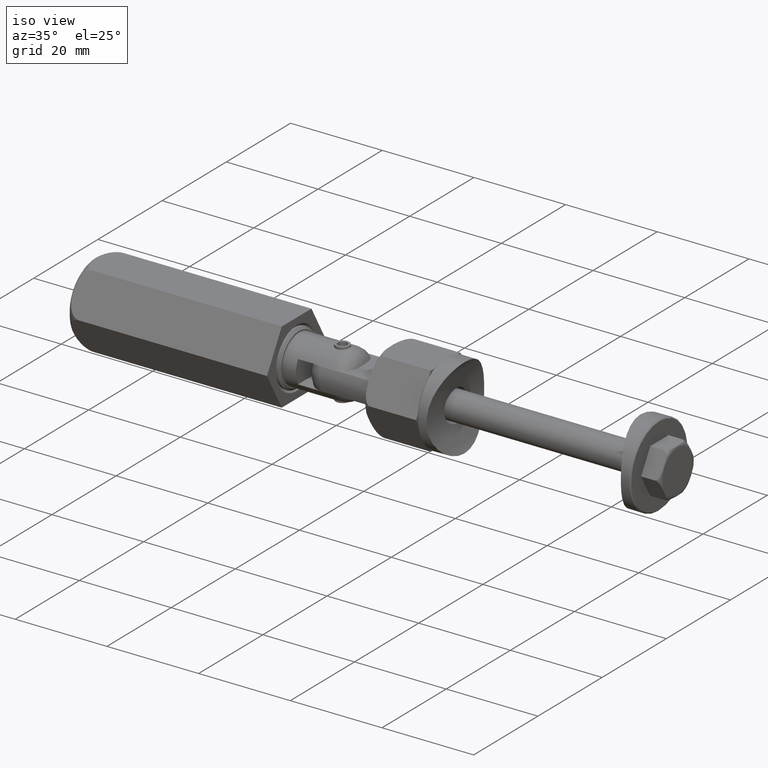
[diagram: clean part render]
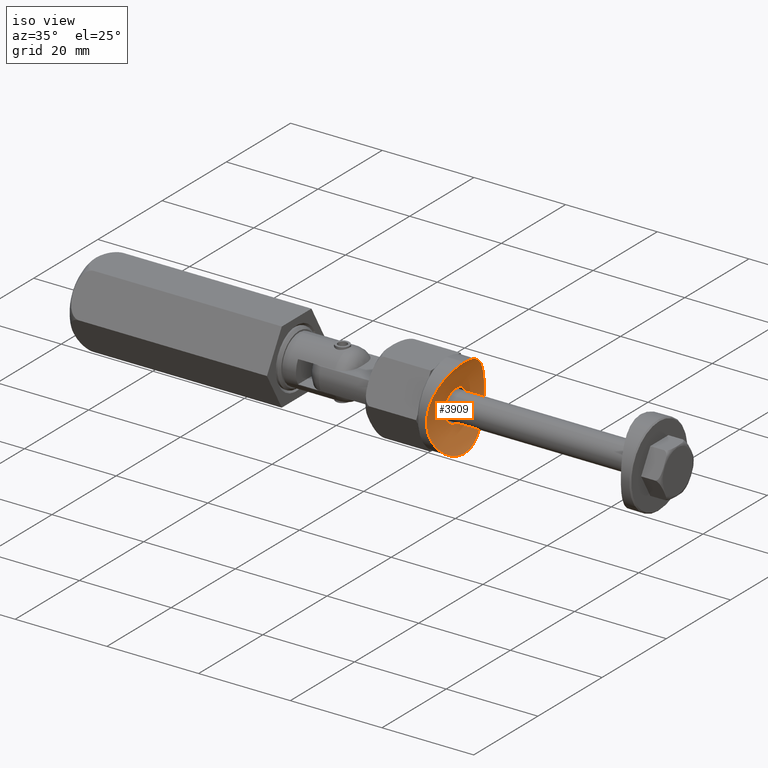
[diagram: same view with one face highlighted and labeled with its STEP entity id]
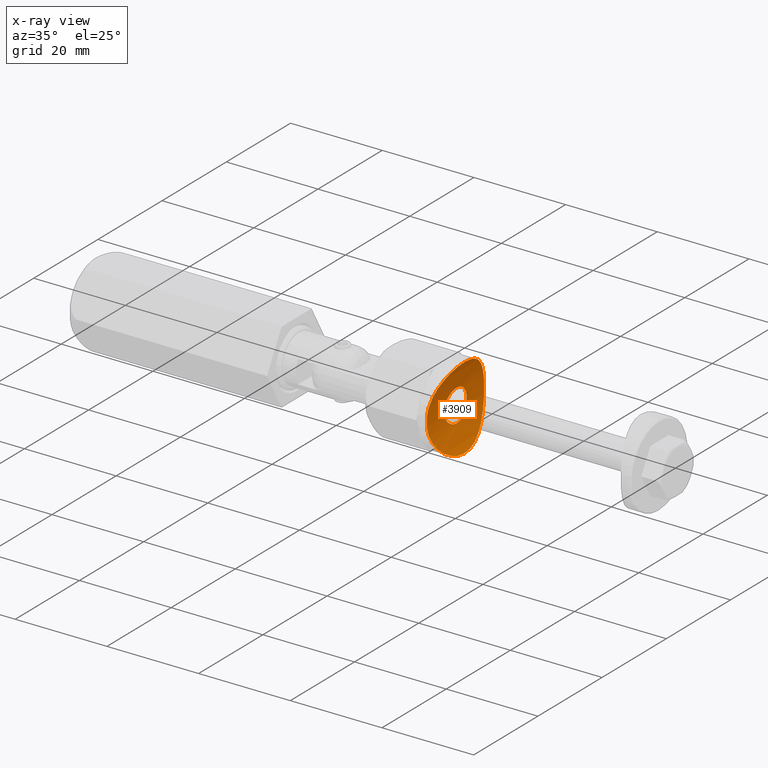
[diagram: x-ray of the same camera — body ghosted, the highlighted face saturated]
A machine part, iso view. The second image highlights one B-rep face of the part: STEP entity #3909.
The next image is the same camera in x-ray: the body ghosted, the highlighted face saturated — about 0% of this face is hidden behind the body in this view.
In plain terms, the highlighted cylindrical surface (partial cylindrical patch) has radius 21.2 mm, axis along (0, 1, 0).
Its self-contained STEP definition (entity closure, byte-faithful):
#37 = CARTESIAN_POINT ( 'NONE',  ( -4.529556461873096573, 7.799281068273506534, 2.583449115028530585 ) ) ;
#212 = CARTESIAN_POINT ( 'NONE',  ( -8.984718648477102221, -0.6034601397220153984, 4.098023013587533292 ) ) ;
#918 = CARTESIAN_POINT ( 'NONE',  ( -8.077715715060879376, 4.012037878863901064, 3.697672808785787968 ) ) ;
#977 = CARTESIAN_POINT ( 'NONE',  ( -8.693075955343484651, 2.349217114833197506, 3.964036308711037293 ) ) ;
#1076 = CARTESIAN_POINT ( 'NONE',  ( -9.000000000000000000, 0.6022301676324366415, 4.105209039950446837 ) ) ;
#1080 = CARTESIAN_POINT ( 'NONE',  ( -3.320600948318714440, 1.129692993203106122, 2.361482373378766653 ) ) ;
#1142 = CARTESIAN_POINT ( 'NONE',  ( 3.476902944007814078, 0.4622046229343148571, 2.387008304216344357 ) ) ;
#1204 = CARTESIAN_POINT ( 'NONE',  ( -0.5856921983027995049, -9.000526453280953021, 2.099776505755873046 ) ) ;
#1208 = CARTESIAN_POINT ( 'NONE',  ( 3.037866316434117309, -1.753302620773837361, 2.318390375629150402 ) ) ;
#1258 = CARTESIAN_POINT ( 'NONE',  ( 1.183904790595069478, 8.926821845496240471, 2.130979375828014444 ) ) ;
#1262 = CARTESIAN_POINT ( 'NONE',  ( -1.127079799142055583, -3.321472759838139943, 2.128918759278375372 ) ) ;
#1317 = CARTESIAN_POINT ( 'NONE',  ( 6.773075127230494097, -5.933833905163506728, 3.210108331659413228 ) ) ;
#1322 = CARTESIAN_POINT ( 'NONE',  ( -1.751451033441404181, -3.038880866574763751, 2.171607237727812834 ) ) ;
#1380 = CARTESIAN_POINT ( 'NONE',  ( -6.161404844027698502, 6.566661741195224167, 3.013965487062178816 ) ) ;
#1435 = CARTESIAN_POINT ( 'NONE',  ( -2.069273427123894837, 8.763926665609220734, 2.199204624531772900 ) ) ;
#1439 = CARTESIAN_POINT ( 'NONE',  ( -3.386783194588574464, -0.9126048154589467831, 2.372224207840019528 ) ) ;
#1560 = CARTESIAN_POINT ( 'NONE',  ( -8.533054436092360362, -2.922138815264546441, 3.891528669452685829 ) ) ;
#1562 = CARTESIAN_POINT ( 'NONE',  ( -3.500000000000000000, -8.131516293641283255E-17, 2.390911067193771000 ) ) ;
#1803 = ORIENTED_EDGE ( 'NONE', *, *, #16024, .F. ) ;
#2197 = DIRECTION ( 'NONE',  ( 0.000000000000000000, 0.000000000000000000, 1.000000000000000000 ) ) ;
#2493 = CARTESIAN_POINT ( 'NONE',  ( 0.2340966869037648945, -3.499812348612850066, 2.100030980172074901 ) ) ;
#2535 = B_SPLINE_CURVE_WITH_KNOTS ( 'NONE', 3,
 ( #7775, #1076, #17632, #13749, #977, #7994, #5360, #918, #13584, #10698, #12102, #3718, #13530, #1380, #15309, #2665, #5536, #37, #2783, #6824, #12621, #12434, #1435, #8272, #7001, #17975, #15243, #1258, #9804, #11056, #15130, #6939, #14047, #13810, #18037, #16569, #6757, #4066, #4185, #5475, #9685, #8341, #4119, #11239, #2728, #18094, #13875, #2843, #9745, #2599, #13987, #8217, #4250, #16751, #12566, #16693, #6884, #1317, #16519, #8159, #11176, #5592, #15373, #12502, #17914, #9554, #9621, #13930, #8399, #10997, #16633, #1204, #12381, #11115, #4006, #5412, #15192, #5650, #4554, #4373, #12758, #7188, #8590, #4442, #12823, #1560, #3031, #14228, #5714, #212, #5835, #9992 ),
 .UNSPECIFIED., .T., .F.,
 ( 4, 2, 2, 2, 2, 2, 2, 2, 2, 2, 2, 2, 2, 2, 2, 2, 2, 2, 2, 2, 2, 2, 2, 2, 2, 2, 2, 2, 2, 2, 2, 2, 2, 2, 2, 2, 2, 2, 2, 2, 2, 2, 2, 2, 2, 4 ),
 ( 0.000000000000000000, 0.001779121269481610899, 0.002668681904222417432, 0.003558242538963223098, 0.005337363808444837467, 0.006226924443185643566, 0.007116485077926449666, 0.008006045712667254899, 0.008895606347408060999, 0.01067472761688967146, 0.01156428825163047756, 0.01245384888637128193, 0.01423297015585289066, 0.01512253079059369502, 0.01601209142533449939, 0.01779121269481610812, 0.01957033396429771338, 0.02134945523377932211, 0.02312857650326093431, 0.02401813713800173694, 0.02490769777274254304, 0.02668681904222415177, 0.02846594031170575703, 0.02935550094644655966, 0.03024506158118736576, 0.03202418285066897796, 0.03291374348540978406, 0.03380330412015058322, 0.03469286475489138932, 0.03558242538963219542, 0.03736154665911380762, 0.03825110729385461372, 0.03914066792859541982, 0.04091978919807702508, 0.04180934983281783118, 0.04269891046755863728, 0.04447803173704026336, 0.04625715300652187556, 0.04803627427600348082, 0.04981539554548509302, 0.05070495618022589912, 0.05159451681496670522, 0.05337363808444831048, 0.05515275935392992268, 0.05604231998867072878, 0.05693188062341153488 ),
 .UNSPECIFIED. ) ;
#2550 = CARTESIAN_POINT ( 'NONE',  ( -2.313446218120369213, 2.636264786901057811, 2.225980594803974366 ) ) ;
#2599 = CARTESIAN_POINT ( 'NONE',  ( 8.708359458168319023, -2.349133148422251516, 3.970722831128999264 ) ) ;
#2603 = CARTESIAN_POINT ( 'NONE',  ( 3.146732856218461105, -1.549214439599097881, 2.334651019177073294 ) ) ;
#2665 = CARTESIAN_POINT ( 'NONE',  ( -5.497450429022882723, 7.131813691955863455, 2.823855749445251195 ) ) ;
#2670 = CARTESIAN_POINT ( 'NONE',  ( -1.550448968162864372, -3.146203770435664904, 2.155707678619462442 ) ) ;
#2728 = CARTESIAN_POINT ( 'NONE',  ( 8.999172276844687346, 0.6052519994996065078, 4.104820939877700248 ) ) ;
#2731 = CARTESIAN_POINT ( 'NONE',  ( 3.499910295345006972, 0.2299777461154664804, 2.390896051414324930 ) ) ;
#2783 = CARTESIAN_POINT ( 'NONE',  ( -4.015580886328727672, 8.075779872960261230, 2.476572724249879176 ) ) ;
#2843 = CARTESIAN_POINT ( 'NONE',  ( 8.927896380613054461, -1.175557709462171863, 4.071539299863849770 ) ) ;
#2849 = CARTESIAN_POINT ( 'NONE',  ( -3.319065593604421327, -1.133907466767667627, 2.361240511285288779 ) ) ;
#3031 = CARTESIAN_POINT ( 'NONE',  ( -8.705287611884930499, -2.359308650723932921, 3.969338804076948612 ) ) ;
#3718 = CARTESIAN_POINT ( 'NONE',  ( -6.766048313375105039, 5.941849588956706896, 3.207737569877102679 ) ) ;
#3890 = CARTESIAN_POINT ( 'NONE',  ( 3.388192740053830754, -0.9074120602962160165, 2.372453070477746895 ) ) ;
#3909 = ADVANCED_FACE ( 'NONE', ( #17736, #9656 ), #15576, .F. ) ;
#4006 = CARTESIAN_POINT ( 'NONE',  ( -2.919603497746500409, -8.533584350906092908, 2.294788581318373932 ) ) ;
#4009 = CARTESIAN_POINT ( 'NONE',  ( -3.500000000000000000, -8.131516293641283255E-17, 2.390911067193771000 ) ) ;
#4066 = CARTESIAN_POINT ( 'NONE',  ( 7.633095921920673987, 4.777164185214711090, 3.521066813696617892 ) ) ;
#4069 = CARTESIAN_POINT ( 'NONE',  ( -0.9100132660212730817, 3.387472811121648775, 2.118333464570299363 ) ) ;
#4119 = CARTESIAN_POINT ( 'NONE',  ( 8.702408039283348273, 2.372073640349042556, 3.968027577799811301 ) ) ;
#4122 = CARTESIAN_POINT ( 'NONE',  ( 2.311144342984660760, 2.638508228965967817, 2.225713509168732784 ) ) ;
#4185 = CARTESIAN_POINT ( 'NONE',  ( 7.786055058421186281, 4.523650702319240935, 3.580978259992664281 ) ) ;
#4250 = CARTESIAN_POINT ( 'NONE',  ( 8.068293523425873914, -3.998611255628535588, 3.694769083929056563 ) ) ;
#4373 = CARTESIAN_POINT ( 'NONE',  ( -6.570051494431054628, -6.157908511444627031, 3.142585294229900850 ) ) ;
#4442 = CARTESIAN_POINT ( 'NONE',  ( -7.796916004019784019, -4.532705707074540236, 3.582807033181333534 ) ) ;
#4554 = CARTESIAN_POINT ( 'NONE',  ( -5.950024793402118206, -6.777821217551546873, 2.947482170566961379 ) ) ;
#4962 = EDGE_CURVE ( 'NONE', #10366, #10366, #5154, .T. ) ;
#5154 = B_SPLINE_CURVE_WITH_KNOTS ( 'NONE', 3,
 ( #4009, #11000, #13815, #6942, #1080, #12505, #10932, #16522, #13752, #2550, #17855, #15313, #5540, #5363, #4069, #16636, #9505, #15247, #10878, #13878, #12437, #8276, #11119, #11060, #4122, #12272, #17919, #5415, #15195, #6708, #6827, #1142, #2731, #6887, #9557, #3890, #16696, #2603, #1208, #16572, #13933, #8220, #5479, #12325, #9687, #18041, #17978, #15133, #2493, #6761, #9626, #13697, #1262, #2670, #1322, #5305, #15075, #16468, #16959, #5839, #11351, #2849, #1439, #8531, #14112, #1562 ),
 .UNSPECIFIED., .T., .F.,
 ( 4, 2, 2, 2, 2, 2, 2, 2, 2, 2, 2, 2, 2, 2, 2, 2, 2, 2, 2, 2, 2, 2, 2, 2, 2, 2, 2, 2, 2, 2, 2, 2, 4 ),
 ( 0.000000000000000000, 0.0006849990492943954347, 0.001369998098588790869, 0.002054997147883185979, 0.002739996197177581739, 0.003424995246471976632, 0.004109994295766371958, 0.004794993345060768151, 0.005479992394355163478, 0.006164991443649557937, 0.006849990492943953263, 0.007534989542238349457, 0.008219988591532743916, 0.008904987640827139242, 0.009589986690121536303, 0.01027498573941593336, 0.01095998478871033043, 0.01164498383800472749, 0.01232998288729912108, 0.01301498193659351814, 0.01369998098588791173, 0.01438498003518230706, 0.01506997908447670412, 0.01575497813377110118, 0.01643997718306549824, 0.01712497623235989877, 0.01780997528165429583, 0.01849497433094869289, 0.01917997338024308995, 0.01986497242953748701, 0.02054997147883188754, 0.02123497052812628461, 0.02191996957742068167 ),
 .UNSPECIFIED. ) ;
#5305 = CARTESIAN_POINT ( 'NONE',  ( -2.132264311149690172, -2.784928464283146443, 2.206635869383564152 ) ) ;
#5317 = EDGE_LOOP ( 'NONE', ( #10252 ) ) ;
#5360 = CARTESIAN_POINT ( 'NONE',  ( -8.417805771125099312, 3.197972917069190402, 3.842463500720283420 ) ) ;
#5363 = CARTESIAN_POINT ( 'NONE',  ( -1.130995421334589635, 3.320057561690506365, 2.129139573495061111 ) ) ;
#5412 = CARTESIAN_POINT ( 'NONE',  ( -4.005712576156172489, -8.080867107885593370, 2.474600650052571460 ) ) ;
#5415 = CARTESIAN_POINT ( 'NONE',  ( 3.035149404128160811, 1.757772086340379625, 2.318002089094626239 ) ) ;
#5475 = CARTESIAN_POINT ( 'NONE',  ( 8.064130121432256715, 4.006978217306452983, 3.693055384883217052 ) ) ;
#5479 = CARTESIAN_POINT ( 'NONE',  ( 2.136284364077222886, -2.781794003270770865, 2.207049254354865209 ) ) ;
#5536 = CARTESIAN_POINT ( 'NONE',  ( -5.261681691625369695, 7.307607166974761093, 2.761796661982786727 ) ) ;
#5540 = CARTESIAN_POINT ( 'NONE',  ( -1.551964471413712188, 3.145367885556102028, 2.155830871819476968 ) ) ;
#5592 = CARTESIAN_POINT ( 'NONE',  ( 4.783214464045443037, -7.629261748838103152, 2.645153529278332361 ) ) ;
#5650 = CARTESIAN_POINT ( 'NONE',  ( -5.501311983712250608, -7.146811310810093687, 2.820136018022912250 ) ) ;
#5714 = CARTESIAN_POINT ( 'NONE',  ( -8.924885096745494906, -1.198231756554555050, 4.070140005998574395 ) ) ;
#5835 = CARTESIAN_POINT ( 'NONE',  ( -9.000000000000000000, -0.3011150838162178767, 4.105209039950448613 ) ) ;
#5839 = CARTESIAN_POINT ( 'NONE',  ( -3.035812752972018913, -1.756976242285883005, 2.318088252811143501 ) ) ;
#6708 = CARTESIAN_POINT ( 'NONE',  ( 3.320605742135959826, 1.129643296139878128, 2.361483480286096892 ) ) ;
#6757 = CARTESIAN_POINT ( 'NONE',  ( 7.143967367260362522, 5.505046255798359489, 3.336905660156288089 ) ) ;
#6761 = CARTESIAN_POINT ( 'NONE',  ( -0.2284514707409497636, -3.500185375067812910, 2.099969395635310487 ) ) ;
#6824 = CARTESIAN_POINT ( 'NONE',  ( -3.205093018567954477, 8.415055338208812685, 2.341889825580586670 ) ) ;
#6827 = CARTESIAN_POINT ( 'NONE',  ( 3.386984049756484705, 0.9114967044412274344, 2.372257293328037253 ) ) ;
#6884 = CARTESIAN_POINT ( 'NONE',  ( 7.142772226264595403, -5.483223177737663434, 3.338559700049898105 ) ) ;
#6887 = CARTESIAN_POINT ( 'NONE',  ( 3.500089168962008834, -0.2272391878289064526, 2.390925993302861929 ) ) ;
#6939 = CARTESIAN_POINT ( 'NONE',  ( 4.012651566003444081, 8.077845520338662766, 2.475794371760390522 ) ) ;
#6942 = CARTESIAN_POINT ( 'NONE',  ( -3.388085022150917780, 0.9071978540637513078, 2.372436356687507075 ) ) ;
#7001 = CARTESIAN_POINT ( 'NONE',  ( -0.6064474908965796773, 8.999256637721661178, 2.100315578128659766 ) ) ;
#7188 = CARTESIAN_POINT ( 'NONE',  ( -7.138145225870883515, -5.489248663871813427, 3.336902390179000477 ) ) ;
#7775 = CARTESIAN_POINT ( 'NONE',  ( -9.000000000000000000, 2.710505431213761085E-16, 4.105209039950448613 ) ) ;
#7994 = CARTESIAN_POINT ( 'NONE',  ( -8.519085452557785487, 2.917802884023286136, 3.886750800336526535 ) ) ;
#8159 = CARTESIAN_POINT ( 'NONE',  ( 5.955765860730117822, -6.772806331197203988, 2.949163426065100513 ) ) ;
#8217 = CARTESIAN_POINT ( 'NONE',  ( 8.195999223167362402, -3.729967871242137356, 3.747998092720924657 ) ) ;
#8220 = CARTESIAN_POINT ( 'NONE',  ( 2.316023470696364939, -2.634023451689342377, 2.226263542081074132 ) ) ;
#8272 = CARTESIAN_POINT ( 'NONE',  ( -1.195367113660793734, 8.940039705118071112, 2.125653978507204833 ) ) ;
#8276 = CARTESIAN_POINT ( 'NONE',  ( 1.550818453994531110, 3.146055797144051702, 2.155730404485694418 ) ) ;
#8341 = CARTESIAN_POINT ( 'NONE',  ( 8.528391803012052463, 2.933994583505460607, 3.889521855624835656 ) ) ;
#8399 = CARTESIAN_POINT ( 'NONE',  ( 1.198462509687661548, -8.924876651340719391, 2.131800132847656126 ) ) ;
#8531 = CARTESIAN_POINT ( 'NONE',  ( -3.477226063791793109, -0.4604854586558340124, 2.387061447148276727 ) ) ;
#8590 = CARTESIAN_POINT ( 'NONE',  ( -7.311472419907169673, -5.256110834363020068, 3.399942953120395739 ) ) ;
#9505 = CARTESIAN_POINT ( 'NONE',  ( -0.2306968966090028050, 3.499868355390663321, 2.100021733776378241 ) ) ;
#9554 = CARTESIAN_POINT ( 'NONE',  ( 2.930983491255338969, -8.529688198176652136, 2.296378237583078796 ) ) ;
#9557 = CARTESIAN_POINT ( 'NONE',  ( 3.477997714786525307, -0.4547291357107196563, 2.387190470263222064 ) ) ;
#9621 = CARTESIAN_POINT ( 'NONE',  ( 2.369100941744511690, -8.702862009132209309, 2.224698540167216354 ) ) ;
#9626 = CARTESIAN_POINT ( 'NONE',  ( -0.4560529739544845196, -3.477670549433095726, 2.103720280169794066 ) ) ;
#9656 = FACE_OUTER_BOUND ( 'NONE', #12959, .T. ) ;
#9685 = CARTESIAN_POINT ( 'NONE',  ( 8.189956734736412614, 3.743000991661145527, 3.745470069114856582 ) ) ;
#9687 = CARTESIAN_POINT ( 'NONE',  ( 1.556204404468899183, -3.143401925480575176, 2.156126715384310888 ) ) ;
#9745 = CARTESIAN_POINT ( 'NONE',  ( 8.883445497185359585, -1.474070503388015485, 4.050882716875977785 ) ) ;
#9804 = CARTESIAN_POINT ( 'NONE',  ( 1.478072324521910952, 8.882734505041486983, 2.149582081430981173 ) ) ;
#9992 = CARTESIAN_POINT ( 'NONE',  ( -9.000000000000000000, 2.710505431213761085E-16, 4.105209039950448613 ) ) ;
#10252 = ORIENTED_EDGE ( 'NONE', *, *, #4962, .T. ) ;
#10366 = VERTEX_POINT ( 'NONE', #12202 ) ;
#10577 = DIRECTION ( 'NONE',  ( -0.000000000000000000, 1.000000000000000000, -0.000000000000000000 ) ) ;
#10698 = CARTESIAN_POINT ( 'NONE',  ( -7.312433258681627635, 5.254898464817233439, 3.400285243842550820 ) ) ;
#10878 = CARTESIAN_POINT ( 'NONE',  ( 0.4590335899886232585, 3.477316445911413201, 2.103779074841384489 ) ) ;
#10932 = CARTESIAN_POINT ( 'NONE',  ( -3.037267722292587457, 1.754211687608835613, 2.318307036184326986 ) ) ;
#10997 = CARTESIAN_POINT ( 'NONE',  ( 0.6023502318451280368, -8.984815514353620358, 2.106459186793928406 ) ) ;
#11000 = CARTESIAN_POINT ( 'NONE',  ( -3.499999999999999112, 0.2316520886482952846, 2.390911067193770556 ) ) ;
#11056 = CARTESIAN_POINT ( 'NONE',  ( 2.349030549496118780, 8.708199343826661831, 2.222486883313150141 ) ) ;
#11060 = CARTESIAN_POINT ( 'NONE',  ( 2.133974681225372372, 2.783529750205419262, 2.206818025532601979 ) ) ;
#11115 = CARTESIAN_POINT ( 'NONE',  ( -2.354678229249704380, -8.707229325129514308, 2.222894217259156591 ) ) ;
#11119 = CARTESIAN_POINT ( 'NONE',  ( 1.755190324390375034, 3.036641687054298266, 2.171926716492254883 ) ) ;
#11176 = CARTESIAN_POINT ( 'NONE',  ( 5.507888469158012335, -7.141587104885536164, 2.821951802872823656 ) ) ;
#11239 = CARTESIAN_POINT ( 'NONE',  ( 8.939971974155941581, 1.198140283409450335, 4.076733770865094364 ) ) ;
#11351 = CARTESIAN_POINT ( 'NONE',  ( -3.143987851673773370, -1.554761379237297181, 2.334237773707898089 ) ) ;
#12102 = CARTESIAN_POINT ( 'NONE',  ( -7.136393349933621622, 5.491527681049625187, 3.336275164817628980 ) ) ;
#12202 = CARTESIAN_POINT ( 'NONE',  ( -3.500000000000000000, 0.000000000000000000, 2.390911067193770556 ) ) ;
#12272 = CARTESIAN_POINT ( 'NONE',  ( 2.637164923716952103, 2.312677023180730096, 2.264023663331899971 ) ) ;
#12325 = CARTESIAN_POINT ( 'NONE',  ( 1.756936801351070443, -3.035664974415376083, 2.172069312910204442 ) ) ;
#12381 = CARTESIAN_POINT ( 'NONE',  ( -1.177433114945624526, -8.942818534641482131, 2.124482320378104472 ) ) ;
#12434 = CARTESIAN_POINT ( 'NONE',  ( -2.360735361079835393, 8.689940755913463377, 2.229909037420221285 ) ) ;
#12437 = CARTESIAN_POINT ( 'NONE',  ( 1.126580436386506401, 3.321674498855188506, 2.128887815577758857 ) ) ;
#12502 = CARTESIAN_POINT ( 'NONE',  ( 4.013155420945840213, -8.061124604704584584, 2.481620030197768667 ) ) ;
#12505 = CARTESIAN_POINT ( 'NONE',  ( -3.144792970768488516, 1.553342875179987592, 2.334356956455917231 ) ) ;
#12525 = VERTEX_POINT ( 'NONE', #12562 ) ;
#12562 = CARTESIAN_POINT ( 'NONE',  ( -9.000000000000000000, 0.000000000000000000, 4.105209039950447725 ) ) ;
#12566 = CARTESIAN_POINT ( 'NONE',  ( 7.639907694094671520, -4.766181298621798845, 3.523707296290869095 ) ) ;
#12621 = CARTESIAN_POINT ( 'NONE',  ( -2.928297529281808753, 8.515469180634772428, 2.301264842937780664 ) ) ;
#12758 = CARTESIAN_POINT ( 'NONE',  ( -6.767985068317842412, -5.939641931502988470, 3.208390767290667078 ) ) ;
#12823 = CARTESIAN_POINT ( 'NONE',  ( -8.075678375321286850, -4.016880884885595471, 3.696806480158376207 ) ) ;
#12959 = EDGE_LOOP ( 'NONE', ( #1803 ) ) ;
#13530 = CARTESIAN_POINT ( 'NONE',  ( -6.571030345259964989, 6.156745591378433247, 3.142925159791039924 ) ) ;
#13584 = CARTESIAN_POINT ( 'NONE',  ( -7.801320390038438468, 4.525699097909324564, 3.584505830987002373 ) ) ;
#13697 = CARTESIAN_POINT ( 'NONE',  ( -0.9041893388819918220, -3.388896340241048133, 2.118104430533367832 ) ) ;
#13737 = AXIS2_PLACEMENT_3D ( 'NONE', #14729, #10577, #2197 ) ;
#13749 = CARTESIAN_POINT ( 'NONE',  ( -8.765548746403903024, 2.062165950460749908, 3.996910775638059299 ) ) ;
#13752 = CARTESIAN_POINT ( 'NONE',  ( -2.635741645386204368, 2.314042222943813343, 2.263859829486521313 ) ) ;
#13810 = CARTESIAN_POINT ( 'NONE',  ( 5.496644906564071675, 7.150322684329964318, 2.818899160525556002 ) ) ;
#13815 = CARTESIAN_POINT ( 'NONE',  ( -3.477229276685080528, 0.4593523931639140745, 2.387063412337750545 ) ) ;
#13875 = CARTESIAN_POINT ( 'NONE',  ( 8.986205239822112389, -0.5808486025061201374, 4.098720092987608865 ) ) ;
#13878 = CARTESIAN_POINT ( 'NONE',  ( 0.9082143567806685303, 3.387858938013993182, 2.118271080315295762 ) ) ;
#13930 = CARTESIAN_POINT ( 'NONE',  ( 1.496328371181379291, -8.879702304195816964, 2.150857130149487872 ) ) ;
#13933 = CARTESIAN_POINT ( 'NONE',  ( 2.638349240458453870, -2.311094447710475563, 2.264186578598627264 ) ) ;
#13987 = CARTESIAN_POINT ( 'NONE',  ( 8.536066545482777101, -2.912700169554784946, 3.892880292925777752 ) ) ;
#14047 = CARTESIAN_POINT ( 'NONE',  ( 4.527725506764322283, 7.799994965017359227, 2.583139751377061089 ) ) ;
#14112 = CARTESIAN_POINT ( 'NONE',  ( -3.500000000000000888, -0.2316520886482962560, 2.390911067193771444 ) ) ;
#14228 = CARTESIAN_POINT ( 'NONE',  ( -8.880462410946023510, -1.491469006224793503, 4.049506213162338497 ) ) ;
#14729 = CARTESIAN_POINT ( 'NONE',  ( 0.000000000000000000, -9.000000000000000000, 23.30000000000000071 ) ) ;
#15075 = CARTESIAN_POINT ( 'NONE',  ( -2.311839137334110283, -2.637664469096317355, 2.225804067002453479 ) ) ;
#15130 = CARTESIAN_POINT ( 'NONE',  ( 2.915995473697132745, 8.535217117214010329, 2.294146457838617703 ) ) ;
#15133 = CARTESIAN_POINT ( 'NONE',  ( 0.4626387774401372610, -3.476785928022042782, 2.103866153282410778 ) ) ;
#15192 = CARTESIAN_POINT ( 'NONE',  ( -4.531143009220560458, -7.798082359429831634, 2.583870890236030782 ) ) ;
#15195 = CARTESIAN_POINT ( 'NONE',  ( 3.144959258377305833, 1.552980274944577799, 2.334382246063314348 ) ) ;
#15243 = CARTESIAN_POINT ( 'NONE',  ( 0.5875516269330899322, 8.985797788739249725, 2.106042185908241215 ) ) ;
#15247 = CARTESIAN_POINT ( 'NONE',  ( 0.2266849831836880713, 3.500130494934292180, 2.099978456028448903 ) ) ;
#15309 = CARTESIAN_POINT ( 'NONE',  ( -5.946797421235012315, 6.761680869955754680, 2.949814619520471304 ) ) ;
#15313 = CARTESIAN_POINT ( 'NONE',  ( -1.755071107980006540, 3.036883176365889891, 2.171900191555174775 ) ) ;
#15373 = CARTESIAN_POINT ( 'NONE',  ( 4.532780756239579212, -7.780812614444896802, 2.588547621772299578 ) ) ;
#15576 = CYLINDRICAL_SURFACE ( 'NONE', #13737, 21.19999999999999574 ) ;
#16024 = EDGE_CURVE ( 'NONE', #12525, #12525, #2535, .T. ) ;
#16468 = CARTESIAN_POINT ( 'NONE',  ( -2.634181019568260673, -2.315807505944566635, 2.263664178963428864 ) ) ;
#16519 = CARTESIAN_POINT ( 'NONE',  ( 6.575604964608815273, -6.151986061130804373, 3.144396724207855875 ) ) ;
#16522 = CARTESIAN_POINT ( 'NONE',  ( -2.783298210497564096, 2.134362886967654749, 2.283109508869928916 ) ) ;
#16569 = CARTESIAN_POINT ( 'NONE',  ( 6.775583308319271580, 5.952246384174825877, 3.207288834857337179 ) ) ;
#16572 = CARTESIAN_POINT ( 'NONE',  ( 2.782822552050209453, -2.135087932694611723, 2.283043207214388914 ) ) ;
#16633 = CARTESIAN_POINT ( 'NONE',  ( 0.3048979933382157670, -8.999731393797212320, 2.100114030898147632 ) ) ;
#16636 = CARTESIAN_POINT ( 'NONE',  ( -0.4580480389297850174, 3.477540536709195163, 2.103742939931357636 ) ) ;
#16693 = CARTESIAN_POINT ( 'NONE',  ( 7.316073530914032119, -5.249737311130738604, 3.401632962292483686 ) ) ;
#16696 = CARTESIAN_POINT ( 'NONE',  ( 3.321139145130335368, -1.127842110824953226, 2.361570729045106898 ) ) ;
#16751 = CARTESIAN_POINT ( 'NONE',  ( 7.790441516584821535, -4.516112634829505978, 3.582711630924209079 ) ) ;
#16959 = CARTESIAN_POINT ( 'NONE',  ( -2.779188294754456390, -2.139915187423183429, 2.282557432926595187 ) ) ;
#17632 = CARTESIAN_POINT ( 'NONE',  ( -8.940179620051695863, 1.192762043537304750, 4.076847759062592225 ) ) ;
#17736 = FACE_BOUND ( 'NONE', #5317, .T. ) ;
#17855 = CARTESIAN_POINT ( 'NONE',  ( -2.137512234397016986, 2.781002601358620652, 2.207159566396101447 ) ) ;
#17914 = CARTESIAN_POINT ( 'NONE',  ( 3.745224452304390717, -8.189008184627281750, 2.431627000577344155 ) ) ;
#17919 = CARTESIAN_POINT ( 'NONE',  ( 2.781691936470198634, 2.136371827064198481, 2.282898434627250506 ) ) ;
#17975 = CARTESIAN_POINT ( 'NONE',  ( 0.2865226143655731916, 9.000361350476717703, 2.099846596592882086 ) ) ;
#17978 = CARTESIAN_POINT ( 'NONE',  ( 0.9101748762663407488, -3.387278660266522579, 2.118363935215678229 ) ) ;
#18037 = CARTESIAN_POINT ( 'NONE',  ( 5.953767838570621862, 6.774246431175876104, 2.948631012675696272 ) ) ;
#18041 = CARTESIAN_POINT ( 'NONE',  ( 1.132090624845834004, -3.319807017092943457, 2.129182338853568446 ) ) ;
#18094 = CARTESIAN_POINT ( 'NONE',  ( 9.000400974029087564, -0.2839722160764822645, 4.105397047312537850 ) ) ;